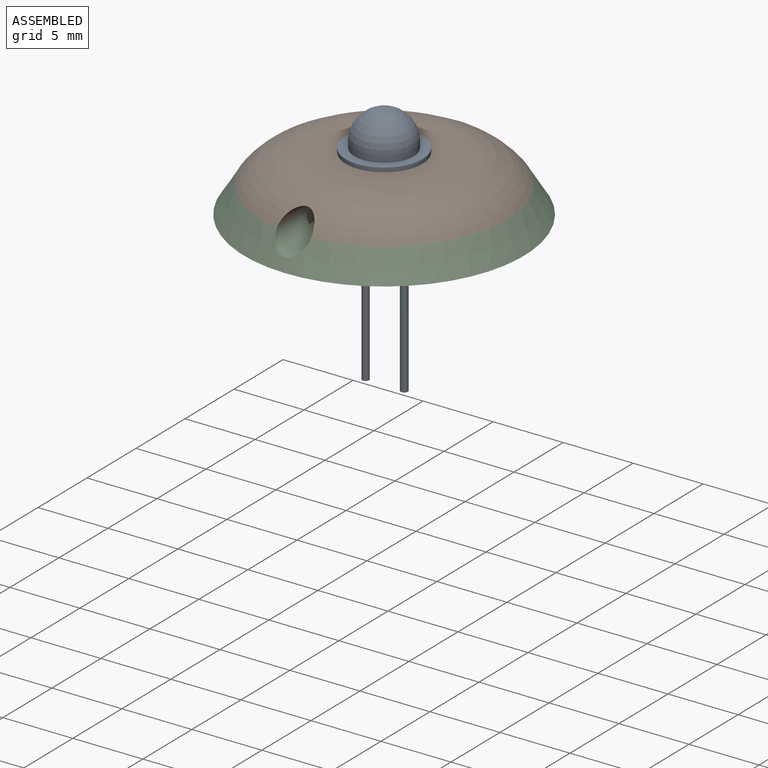
[diagram: assembled view]
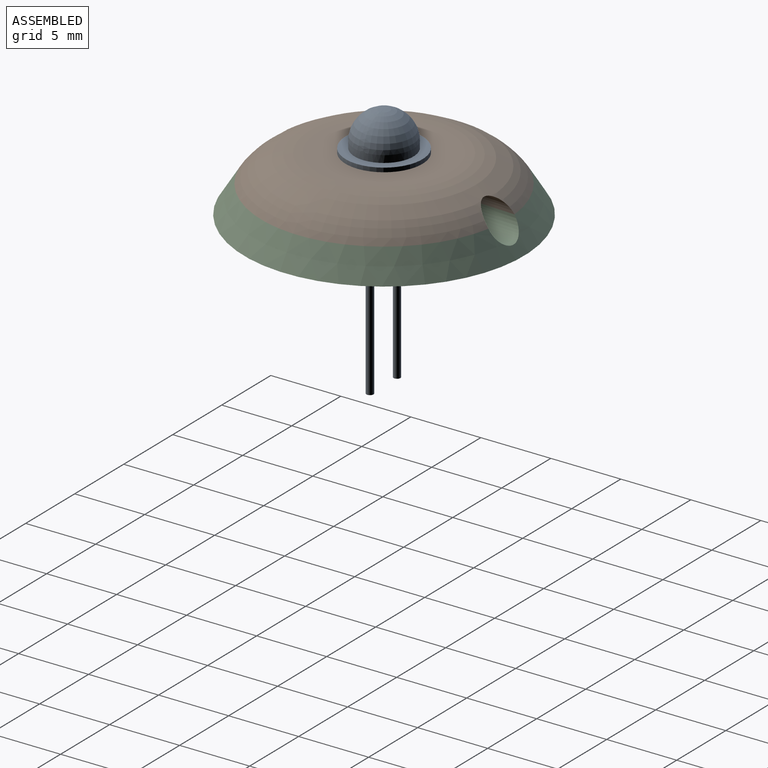
[diagram: assembled view, second angle]
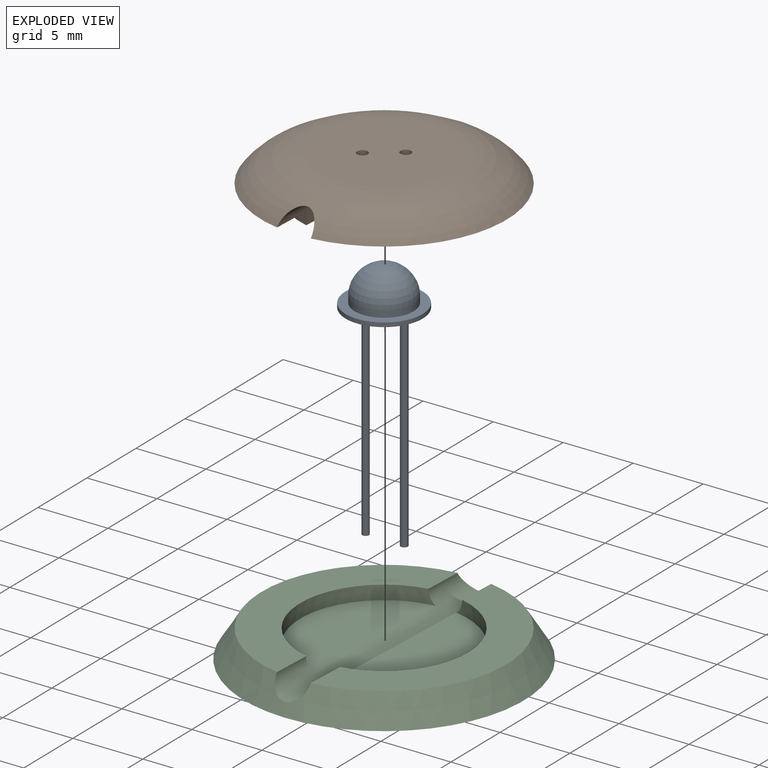
[diagram: exploded view]
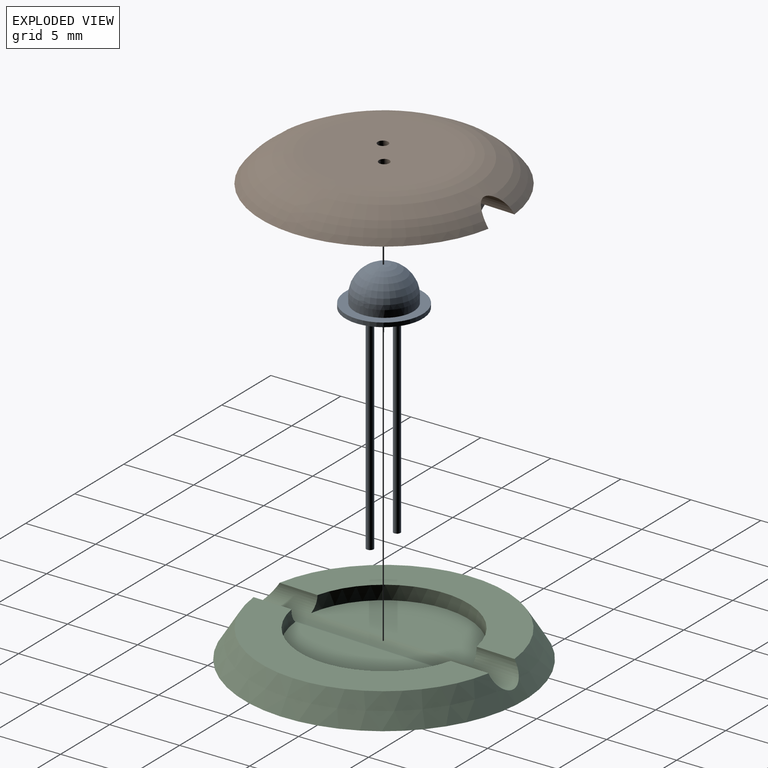
[diagram: exploded view, second angle]
ASSEMBLY  parts=3 mates=2
PART A: 10 faces, bbox 5.5x5.5x17.8 mm
  f0: cylinder r=2.75mm len=5.5mm, axis (0,0,-1), area 5.2mm2, adj f1,f2
  f1: plane 5.5x5.5mm, normal (0,0,1), area 9.9mm2, adj f0,f3
  f2: plane 5.5x5.5mm, normal (0,0,-1), area 23.4mm2, adj f0,f6,f8
  f3: cylinder r=2.1mm len=4.2mm, axis (0,0,-1), area 6.6mm2, adj f1,f5
  f4: plane 0.2x0.2mm, normal (0,0,1), area 0mm2, adj f5
  f5: bspline ~4.65x4.65mm, area 26.9mm2, adj f3,f4
  f6: cylinder r=0.25mm len=15mm, axis (0,0,1), area 23.9mm2, adj f2,f7
  f7: plane 0.51x0.51mm, normal (0,0,-1), area 0.2mm2, adj f6
  f8: cylinder r=0.24mm len=15mm, axis (0,0,1), area 22.8mm2, adj f2,f9
  f9: plane 0.49x0.49mm, normal (0,0,-1), area 0.2mm2, adj f8
PART B: 23 faces, bbox 17.5x17.5x2.9 mm
  f0: cylinder r=0.38mm len=1.15mm, axis (0,0,1), area 2.5mm2, adj f6,f8,f21
  f1: cylinder r=0.38mm len=1.15mm, axis (0,0,1), area 2.5mm2, adj f6,f8,f18
  f2: cylinder r=5.98mm len=11.69mm, axis (0,0,1), area 14.6mm2, adj f3,f5,f16,f17
  f3: plane 11.69x4.73mm, normal (0,0,-1), area 14.3mm2, adj f2,f4,f16,f17
  f4: cylinder r=5mm len=9.71mm, axis (0,0,-1), area 16.5mm2, adj f3,f8,f12,f16,f17
  f5: plane 17.34x7.51mm, normal (0,0,-1), area 57.4mm2, adj f2,f8,f22
  f6: plane 9.52x9.52mm, normal (0,0,1), area 70.3mm2, adj f0,f1,f22
  f7: plane 17.34x7.51mm, normal (0,0,-1), area 57.4mm2, adj f8,f9,f13,f14,f15,f22
  f8: cylinder r=1.25mm len=17.34mm, axis (0,-1,0), area 45.9mm2, adj f0,f1,f4,f5,f7,f11,f12,f13
  f9: cylinder r=5.98mm len=11.68mm, axis (0,0,1), area 14.6mm2, adj f7,f10,f14,f15
  f10: plane 11.68x4.72mm, normal (0,0,-1), area 14.3mm2, adj f9,f13,f14,f15
  f11: plane 9.71x3.8mm, normal (0,0,-1), area 11.7mm2, adj f8,f13,f19
  f12: plane 9.71x3.8mm, normal (0,0,-1), area 11.7mm2, adj f4,f8,f20
  f13: cylinder r=5mm len=9.71mm, axis (0,0,-1), area 16.5mm2, adj f7,f8,f10,f11,f14,f15
  f14: plane 1x0.9mm, normal (-1,0,0), area 0.9mm2, adj f7,f9,f10,f13
  f15: plane 1x0.9mm, normal (-1,0,0), area 0.9mm2, adj f7,f9,f10,f13
  f16: plane 1x0.9mm, normal (1,0,0), area 0.9mm2, adj f2,f3,f4,f8
  f17: plane 1x0.9mm, normal (1,0,0), area 0.9mm2, adj f2,f3,f4,f8
  f18: plane 7.79x3.08mm, normal (0,0,-1), area 17.6mm2, adj f1,f8,f19
  f19: cylinder r=4mm len=7.79mm, axis (0,0,-1), area 5.2mm2, adj f8,f11,f18
  f20: cylinder r=4mm len=7.79mm, axis (0,0,-1), area 5.2mm2, adj f8,f12,f21
  f21: plane 7.79x3.08mm, normal (0,0,-1), area 17.6mm2, adj f0,f8,f20
  f22: torus R=4.76mm, axis (0,0,1), area 194.4mm2, adj f5,f6,f7,f8
PART C: 9 faces, bbox 20x20x2 mm
  f0: plane 17.32x7.5mm, normal (0,0,1), area 56.8mm2, adj f3,f6,f8
  f1: cylinder r=6mm len=11.91mm, axis (0,0,1), area 16.6mm2, adj f4,f7,f8
  f2: plane 11.91x5.25mm, normal (0,0,1), area 47.6mm2, adj f6,f8
  f3: cone r=10mm half-angle=32deg, axis (0,0,-1), area 133.1mm2, adj f0,f4,f5,f8
  f4: plane 17.32x7.5mm, normal (0,0,1), area 56.8mm2, adj f1,f3,f8
  f5: plane 20x20mm, normal (0,0,-1), area 314.2mm2, adj f3
  f6: cylinder r=6mm len=11.91mm, axis (0,0,1), area 16.6mm2, adj f0,f2,f8
  f7: plane 11.91x5.25mm, normal (0,0,1), area 47.6mm2, adj f1,f8
  f8: cylinder r=1.25mm len=19.06mm, axis (0,-1,0), area 44.9mm2, adj f0,f1,f2,f3,f4,f6,f7
PLACE A t=(4.23,-6.44,-10.57)mm
PLACE B rot(axis=(0,0,-1),2.5deg) t=(4.23,-6.44,-12.57)mm
PLACE C rot(axis=(0,0,-1),2.5deg) t=(4.23,-6.44,-14.57)mm
MATE cylindrical C.f1 <-> B.f4  axis (0,0,1) through (4.23,-6.44,-12.57)mm
MATE cylindrical A.f0 <-> B.f22  axis (0,0,-1) through (4.23,-6.44,-10.57)mm
